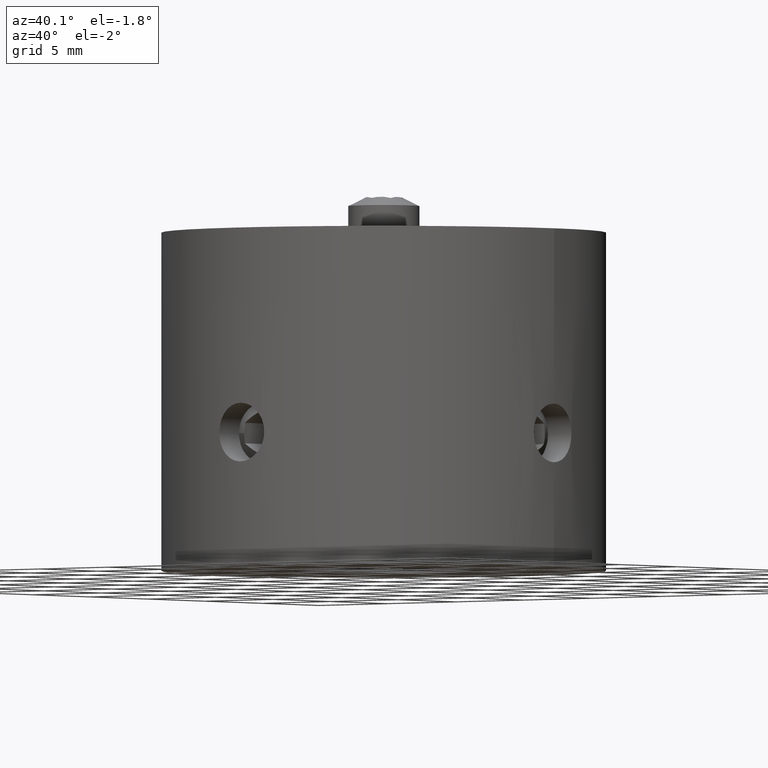
[diagram: clean part render]
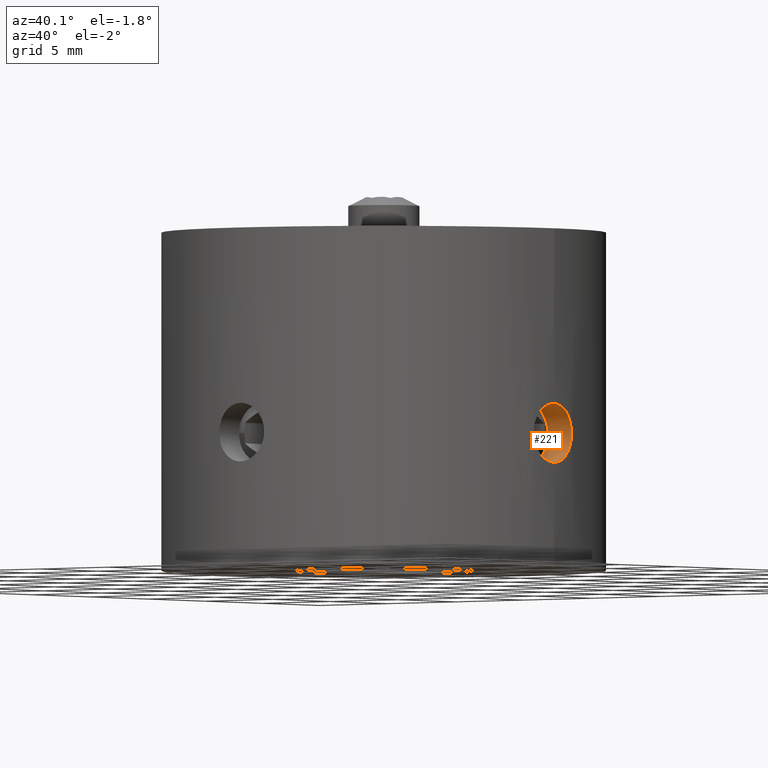
[diagram: same view with one face highlighted and labeled with its STEP entity id]
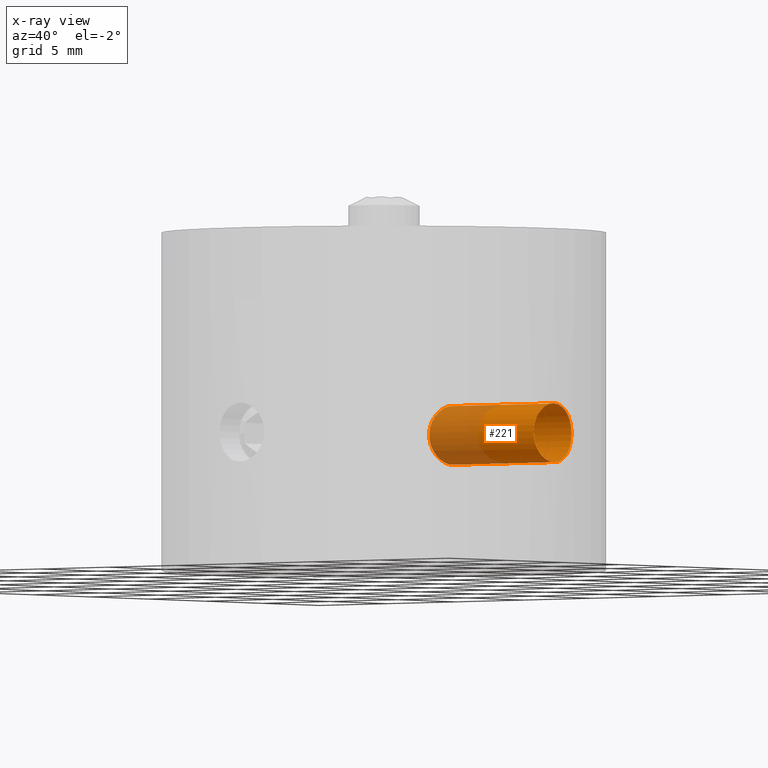
[diagram: x-ray of the same camera — body ghosted, the highlighted face saturated]
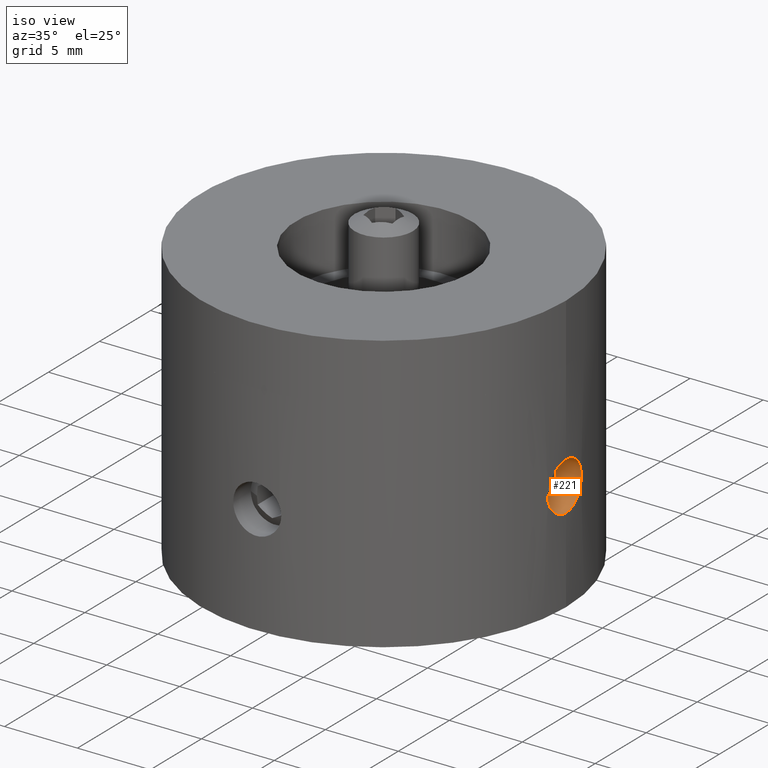
[diagram: same view with one face highlighted and labeled with its STEP entity id]
A machine part, auxiliary view. The second image highlights one B-rep face of the part: STEP entity #221.
The next image is the same camera in x-ray: the body ghosted, the highlighted face saturated — about 37% of this face is hidden behind the body in this view.
A second angle (iso view) of the same face is appended — the face is thin or edge-on in the first view.
In plain terms, the highlighted cylindrical surface (bore or boss wall) has radius 1.65 mm, axis along (-1, 0, -0).
Its self-contained STEP definition (entity closure, byte-faithful):
#221 = ADVANCED_FACE( '', ( #257, #258 ), #259, .F. );
#257 = FACE_OUTER_BOUND( '', #317, .T. );
#258 = FACE_OUTER_BOUND( '', #318, .T. );
#259 = CYLINDRICAL_SURFACE( '', #319, 1.65000000000000 );
#317 = EDGE_LOOP( '', ( #381 ) );
#318 = EDGE_LOOP( '', ( #382 ) );
#319 = AXIS2_PLACEMENT_3D( '', #383, #384, #385 );
#381 = ORIENTED_EDGE( '', *, *, #498, .T. );
#382 = ORIENTED_EDGE( '', *, *, #502, .F. );
#383 = CARTESIAN_POINT( '', ( 11.0000000000000, -6.73533494602307E-016, -7.50000000000000 ) );
#384 = DIRECTION( '', ( -1.00000000000000, 6.12303176911189E-017, -0.000000000000000 ) );
#385 = DIRECTION( '', ( 6.12303176911189E-017, 1.00000000000000, 0.000000000000000 ) );
#498 = EDGE_CURVE( '', #533, #533, #534, .T. );
#502 = EDGE_CURVE( '', #541, #541, #542, .T. );
#533 = VERTEX_POINT( '', #646 );
#534 = B_SPLINE_CURVE_WITH_KNOTS( '', 3, ( #647, #648, #649, #650, #651, #652, #653, #654, #655, #656, #657, #658, #659, #660, #661, #662, #663, #664, #665, #666, #667, #668, #669, #670, #671, #672, #673, #674, #675, #676, #677, #678, #679, #680, #681, #682, #683, #684, #685, #686, #687, #688, #689, #690, #691, #692, #693, #694, #695, #696, #697, #698, #699, #700 ), .UNSPECIFIED., .T., .F., ( 2, 2, 2, 2, 2, 2, 2, 2, 2, 2, 2, 2, 2, 2, 2, 2, 2, 2, 2, 2, 2, 2, 2, 2, 2, 2, 2, 2, 2 ), ( -0.000645458002683238, 0.000000000000000, 0.000322729001341615, 0.000645458002683230, 0.000968187004024846, 0.00129091600536646, 0.00193637400804969, 0.00258183201073292, 0.00290456101207454, 0.00322729001341616, 0.00355001901475777, 0.00387274801609939, 0.00419547701744101, 0.00451820601878262, 0.00484093502012424, 0.00516366402146586, 0.00580912202414909, 0.00645458002683233, 0.00677730902817394, 0.00710003802951556, 0.00742276703085718, 0.00774549603219880, 0.00806822503354041, 0.00839095403488203, 0.00871368303622365, 0.00903641203756527, 0.00968187004024850, 0.0103273280429317, 0.0106500570442734 ), .UNSPECIFIED. );
#541 = VERTEX_POINT( '', #762 );
#542 = B_SPLINE_CURVE_WITH_KNOTS( '', 3, ( #763, #764, #765, #766, #767, #768, #769, #770, #771, #772, #773, #774, #775, #776, #777, #778, #779, #780, #781, #782, #783, #784, #785, #786, #787, #788, #789, #790, #791, #792, #793, #794, #795, #796, #797, #798, #799, #800, #801, #802, #803, #804, #805, #806, #807, #808, #809, #810, #811, #812, #813, #814, #815, #816, #817, #818 ), .UNSPECIFIED., .T., .F., ( 2, 2, 2, 2, 2, 2, 2, 2, 2, 2, 2, 2, 2, 2, 2, 2, 2, 2, 2, 2, 2, 2, 2, 2, 2, 2, 2, 2, 2, 2 ), ( -0.000324666240844053, 0.000000000000000, 0.000324666240844053, 0.000649332481688105, 0.000973998722532158, 0.00129866496337621, 0.00194799744506432, 0.00227266368590837, 0.00259732992675242, 0.00292199616759647, 0.00324666240844053, 0.00389599489012863, 0.00422066113097268, 0.00454532737181673, 0.00486999361266078, 0.00519465985350483, 0.00584399233519294, 0.00616865857603699, 0.00649332481688104, 0.00714265729856914, 0.00746732353941319, 0.00779198978025724, 0.00811665602110129, 0.00844132226194535, 0.00909065474363345, 0.00941532098447751, 0.00973998722532156, 0.0100646534661656, 0.0103893197070097, 0.0107139859478537 ), .UNSPECIFIED. );
#646 = CARTESIAN_POINT( '', ( 12.5000000000000, 0.000000000000000, -9.15000000000000 ) );
#647 = CARTESIAN_POINT( '', ( 12.5000000000000, -0.218268717583896, -9.15000000000000 ) );
#648 = CARTESIAN_POINT( '', ( 12.5000000000000, 0.109134358791947, -9.15000000000000 ) );
#649 = CARTESIAN_POINT( '', ( 12.4985720545213, 0.216421376821623, -9.13927931323533 ) );
#650 = CARTESIAN_POINT( '', ( 12.4931349301719, 0.427459040054774, -9.09729572973263 ) );
#651 = CARTESIAN_POINT( '', ( 12.4890610184038, 0.532312342015108, -9.06551461337849 ) );
#652 = CARTESIAN_POINT( '', ( 12.4789451602994, 0.732071879745783, -8.98265410566615 ) );
#653 = CARTESIAN_POINT( '', ( 12.4729501584153, 0.826796251394575, -8.93196588448889 ) );
#654 = CARTESIAN_POINT( '', ( 12.4597717426369, 1.00606451931214, -8.81223188447828 ) );
#655 = CARTESIAN_POINT( '', ( 12.4525448370918, 1.09085057747089, -8.74261895354523 ) );
#656 = CARTESIAN_POINT( '', ( 12.4311659373654, 1.31887264217724, -8.51454538490402 ) );
#657 = CARTESIAN_POINT( '', ( 12.4168511026571, 1.44176588595145, -8.33065332949920 ) );
#658 = CARTESIAN_POINT( '', ( 12.3966241038900, 1.60642180086778, -7.93368516391293 ) );
#659 = CARTESIAN_POINT( '', ( 12.3906375149967, 1.64987938550067, -7.71639287562612 ) );
#660 = CARTESIAN_POINT( '', ( 12.3906134739298, 1.65005992114066, -7.39318603801133 ) );
#661 = CARTESIAN_POINT( '', ( 12.3920568555877, 1.63932254385621, -7.28373578967451 ) );
#662 = CARTESIAN_POINT( '', ( 12.3975586241054, 1.59718241812991, -7.07203161953295 ) );
#663 = CARTESIAN_POINT( '', ( 12.4015872475425, 1.56600445929858, -6.96912206515908 ) );
#664 = CARTESIAN_POINT( '', ( 12.4117518977073, 1.48329061707825, -6.76921255242607 ) );
#665 = CARTESIAN_POINT( '', ( 12.4178861491316, 1.43168025434324, -6.67275594623392 ) );
#666 = CARTESIAN_POINT( '', ( 12.4310660921789, 1.31232639817633, -6.49409717178189 ) );
#667 = CARTESIAN_POINT( '', ( 12.4381766258266, 1.24407795071813, -6.41068354721773 ) );
#668 = CARTESIAN_POINT( '', ( 12.4526029715856, 1.09025086781876, -6.25674084480122 ) );
#669 = CARTESIAN_POINT( '', ( 12.4596897012928, 1.00704791385508, -6.18855246280475 ) );
#670 = CARTESIAN_POINT( '', ( 12.4728344484330, 0.828500920509317, -6.06904704188762 ) );
#671 = CARTESIAN_POINT( '', ( 12.4789491180119, 0.732001039365523, -6.01731296332802 ) );
#672 = CARTESIAN_POINT( '', ( 12.4890617389637, 0.532290796386285, -5.93447999743542 ) );
#673 = CARTESIAN_POINT( '', ( 12.4930693351846, 0.429447200475604, -5.90321512276611 ) );
#674 = CARTESIAN_POINT( '', ( 12.4985507221777, 0.217798431761399, -5.86088112533549 ) );
#675 = CARTESIAN_POINT( '', ( 12.4999946137096, 0.108359263671626, -5.85004080523313 ) );
#676 = CARTESIAN_POINT( '', ( 12.5000107259847, -0.214849113189731, -5.84991874253468 ) );
#677 = CARTESIAN_POINT( '', ( 12.4941097740931, -0.432176451175783, -5.89316081998643 ) );
#678 = CARTESIAN_POINT( '', ( 12.4740363565797, -0.829441080950476, -6.05752430571283 ) );
#679 = CARTESIAN_POINT( '', ( 12.4597934264066, -1.01337538683081, -6.18021219723961 ) );
#680 = CARTESIAN_POINT( '', ( 12.4384050229508, -1.24174311388204, -6.40814771197568 ) );
#681 = CARTESIAN_POINT( '', ( 12.4311602416685, -1.31144442297500, -6.49291755280754 ) );
#682 = CARTESIAN_POINT( '', ( 12.4179380173812, -1.43123961134091, -6.67195730489055 ) );
#683 = CARTESIAN_POINT( '', ( 12.4119056874338, -1.48200811376879, -6.76661555459637 ) );
#684 = CARTESIAN_POINT( '', ( 12.4017057565485, -1.56507034059851, -6.96637501650000 ) );
#685 = CARTESIAN_POINT( '', ( 12.3975929814543, -1.59691586009820, -7.07113081673446 ) );
#686 = CARTESIAN_POINT( '', ( 12.3920891384583, -1.63907863830306, -7.28207740354287 ) );
#687 = CARTESIAN_POINT( '', ( 12.3906344755286, -1.64990221026727, -7.38943317667250 ) );
#688 = CARTESIAN_POINT( '', ( 12.3906086053349, -1.65009648172532, -7.60762865261294 ) );
#689 = CARTESIAN_POINT( '', ( 12.3920359533307, -1.63947830891800, -7.71491572535688 ) );
#690 = CARTESIAN_POINT( '', ( 12.3974940406203, -1.59768135334861, -7.92601899908389 ) );
#691 = CARTESIAN_POINT( '', ( 12.4015906304113, -1.56597694515913, -8.03094465513571 ) );
#692 = CARTESIAN_POINT( '', ( 12.4117486365143, -1.48331714109242, -8.23072312029147 ) );
#693 = CARTESIAN_POINT( '', ( 12.4177671701707, -1.43271737321076, -8.32549794405439 ) );
#694 = CARTESIAN_POINT( '', ( 12.4309846987584, -1.31310318836816, -8.50493081544718 ) );
#695 = CARTESIAN_POINT( '', ( 12.4382204141905, -1.24357997421284, -8.58975308681178 ) );
#696 = CARTESIAN_POINT( '', ( 12.4595958028820, -1.01574865286461, -8.81794022782515 ) );
#697 = CARTESIAN_POINT( '', ( 12.4738662034013, -0.831944848169980, -8.94102190300126 ) );
#698 = CARTESIAN_POINT( '', ( 12.4940044451726, -0.435112875883506, -9.10603646925165 ) );
#699 = CARTESIAN_POINT( '', ( 12.5000000000000, -0.218268717583896, -9.15000000000000 ) );
#700 = CARTESIAN_POINT( '', ( 12.5000000000000, 0.109134358791947, -9.15000000000000 ) );
#762 = CARTESIAN_POINT( '', ( 5.00000000000000, 0.000000000000000, -9.15000000000000 ) );
#763 = CARTESIAN_POINT( '', ( 5.00000000000000, -0.109835536220147, -9.15000000000000 ) );
#764 = CARTESIAN_POINT( '', ( 5.00000000000000, 0.109835536220146, -9.15000000000000 ) );
#765 = CARTESIAN_POINT( '', ( 4.99638763625927, 0.217688094822252, -9.13914354679063 ) );
#766 = CARTESIAN_POINT( '', ( 4.98263907752836, 0.429633962204031, -9.09674491767895 ) );
#767 = CARTESIAN_POINT( '', ( 4.97232767456793, 0.534855307893066, -9.06464274572347 ) );
#768 = CARTESIAN_POINT( '', ( 4.94680087144427, 0.734352668636630, -8.98152059728939 ) );
#769 = CARTESIAN_POINT( '', ( 4.93166204488017, 0.828842250047667, -8.93076789090967 ) );
#770 = CARTESIAN_POINT( '', ( 4.89826049237377, 1.00762798156162, -8.81101566882179 ) );
#771 = CARTESIAN_POINT( '', ( 4.87999899290080, 1.09162197388272, -8.74188149245731 ) );
#772 = CARTESIAN_POINT( '', ( 4.82562647798528, 1.31812135756645, -8.51522844099916 ) );
#773 = CARTESIAN_POINT( '', ( 4.78874071107988, 1.44064944240953, -8.33253363271900 ) );
#774 = CARTESIAN_POINT( '', ( 4.74914509275229, 1.56444814278200, -8.03527822198063 ) );
#775 = CARTESIAN_POINT( '', ( 4.73830359005845, 1.59655512217687, -7.93051707068544 ) );
#776 = CARTESIAN_POINT( '', ( 4.72370050753533, 1.63925674768184, -7.71718775628551 ) );
#777 = CARTESIAN_POINT( '', ( 4.71993113326332, 1.64992427208637, -7.60961842992412 ) );
#778 = CARTESIAN_POINT( '', ( 4.71987846502802, 1.65007493215697, -7.39267329285808 ) );
#779 = CARTESIAN_POINT( '', ( 4.72372784040480, 1.63917627600394, -7.28247369567573 ) );
#780 = CARTESIAN_POINT( '', ( 4.73825079285074, 1.59671005448043, -7.07019357984295 ) );
#781 = CARTESIAN_POINT( '', ( 4.74886821385391, 1.56530191977704, -6.96694763823385 ) );
#782 = CARTESIAN_POINT( '', ( 4.78891789519195, 1.44011910741734, -6.66584375670982 ) );
#783 = CARTESIAN_POINT( '', ( 4.82553797434980, 1.31855584187964, -6.48508180242912 ) );
#784 = CARTESIAN_POINT( '', ( 4.88021561330725, 1.09068654073655, -6.25724500249043 ) );
#785 = CARTESIAN_POINT( '', ( 4.89813662733830, 1.00820396732400, -6.18945176451320 ) );
#786 = CARTESIAN_POINT( '', ( 4.93146357862007, 0.829990742445133, -6.06992053202600 ) );
#787 = CARTESIAN_POINT( '', ( 4.94692765916273, 0.733441808669379, -6.01806139762505 ) );
#788 = CARTESIAN_POINT( '', ( 4.97232986094084, 0.534757800961844, -5.93535531118925 ) );
#789 = CARTESIAN_POINT( '', ( 4.98246930232007, 0.431795178860569, -5.90378191972780 ) );
#790 = CARTESIAN_POINT( '', ( 4.99637957981227, 0.218262501323627, -5.86087806530720 ) );
#791 = CARTESIAN_POINT( '', ( 4.99998552098559, 0.108867850517933, -5.85004387580442 ) );
#792 = CARTESIAN_POINT( '', ( 5.00002882455228, -0.215734627295231, -5.84991265286552 ) );
#793 = CARTESIAN_POINT( '', ( 4.98515344017731, -0.434216836233566, -5.89361895302897 ) );
#794 = CARTESIAN_POINT( '', ( 4.94701086894016, -0.732910794935545, -6.01778279294122 ) );
#795 = CARTESIAN_POINT( '', ( 4.93155325174304, -0.829459497867047, -6.06961279887998 ) );
#796 = CARTESIAN_POINT( '', ( 4.89823911244812, -1.00770736360446, -6.18907037829364 ) );
#797 = CARTESIAN_POINT( '', ( 4.88029505191802, -1.09034869156518, -6.25692003398851 ) );
#798 = CARTESIAN_POINT( '', ( 4.82544979572954, -1.31893689037321, -6.48543715640651 ) );
#799 = CARTESIAN_POINT( '', ( 4.78900740359890, -1.43982313873576, -6.66537125733255 ) );
#800 = CARTESIAN_POINT( '', ( 4.74895189866938, -1.56504840492742, -6.96621873162731 ) );
#801 = CARTESIAN_POINT( '', ( 4.73833847797232, -1.59645019954891, -7.06929452586912 ) );
#802 = CARTESIAN_POINT( '', ( 4.72380037409615, -1.63896760101044, -7.28103505320678 ) );
#803 = CARTESIAN_POINT( '', ( 4.71990866955540, -1.64998853062776, -7.39108189098146 ) );
#804 = CARTESIAN_POINT( '', ( 4.71990065695902, -1.65001145104670, -7.60857033245831 ) );
#805 = CARTESIAN_POINT( '', ( 4.72365834343302, -1.63937700238736, -7.71623240631197 ) );
#806 = CARTESIAN_POINT( '', ( 4.73820482184360, -1.59684694560844, -7.92941034197728 ) );
#807 = CARTESIAN_POINT( '', ( 4.74904714852633, -1.56474738962517, -8.03445665013771 ) );
#808 = CARTESIAN_POINT( '', ( 4.78871320555187, -1.44074934809374, -8.33249896866496 ) );
#809 = CARTESIAN_POINT( '', ( 4.82558907262399, -1.31828279837326, -8.51507753483999 ) );
#810 = CARTESIAN_POINT( '', ( 4.88003247062558, -1.09147970398846, -8.74201853461902 ) );
#811 = CARTESIAN_POINT( '', ( 4.89833906802602, -1.00722776289552, -8.81130283173932 ) );
#812 = CARTESIAN_POINT( '', ( 4.93165924772445, -0.828836809047125, -8.93075239886000 ) );
#813 = CARTESIAN_POINT( '', ( 4.94678192412641, -0.734476668026768, -8.98145734709692 ) );
#814 = CARTESIAN_POINT( '', ( 4.97230806618776, -0.535032593085342, -9.06458044583188 ) );
#815 = CARTESIAN_POINT( '', ( 4.98262901639659, -0.429757028653539, -9.09671366192997 ) );
#816 = CARTESIAN_POINT( '', ( 4.99638506420792, -0.217759750354423, -9.13913584336275 ) );
#817 = CARTESIAN_POINT( '', ( 5.00000000000000, -0.109835536220147, -9.15000000000000 ) );
#818 = CARTESIAN_POINT( '', ( 5.00000000000000, 0.109835536220146, -9.15000000000000 ) );